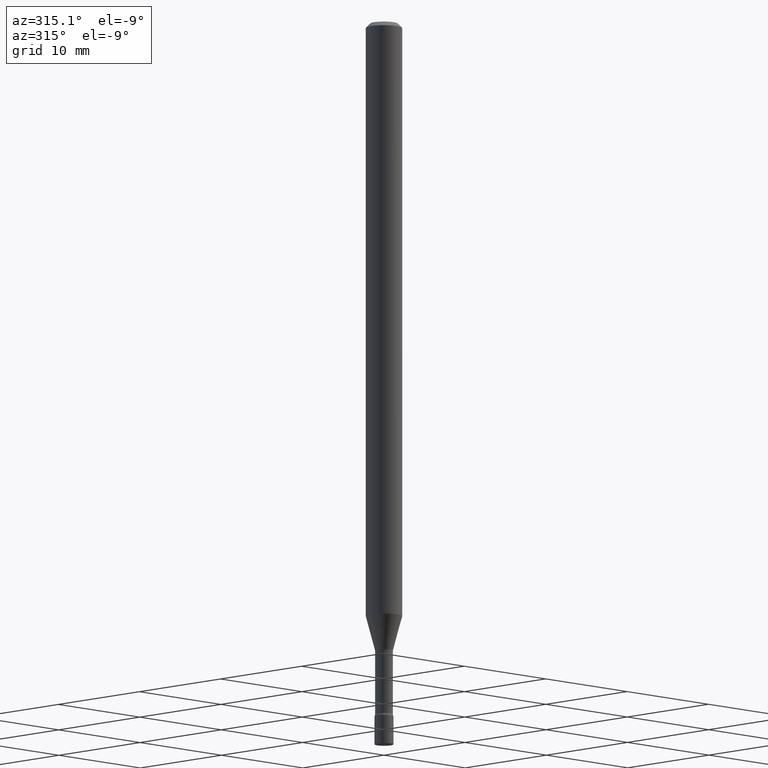
[diagram: clean part render]
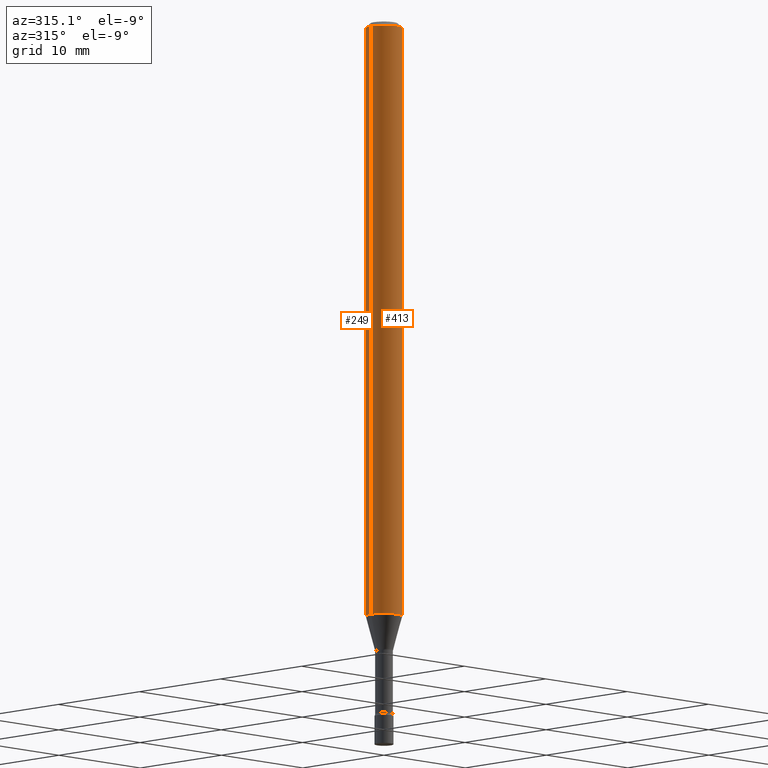
[diagram: same view with one multi-face feature highlighted, each face labeled with its STEP entity id]
A machine part, auxiliary view. The highlighted faces form ONE feature: a constant-radius fillet chain: 2 tangent blend faces with common blend radius 1.5875 mm. The faces share edges in the B-rep.
Their STEP definitions:
[1] entity #413 (Cylinder):
#6 = DIRECTION ( 'NONE',  ( -2.445468806185136877E-29, 3.491481338843145188E-15, 1.000000000000000000 ) ) ;
#18 = ORIENTED_EDGE ( 'NONE', *, *, #243, .T. ) ;
#29 = CARTESIAN_POINT ( 'NONE',  ( 0.06250000000000000000, -4.888073874380389458E-16, -0.01500000000000003067 ) ) ;
#44 = CARTESIAN_POINT ( 'NONE',  ( 5.027299341488075466E-29, -7.177651087263634781E-15, -2.055760976698174591 ) ) ;
#45 = CIRCLE ( 'NONE', #321, 0.06250000000000000000 ) ;
#67 = DIRECTION ( 'NONE',  ( 1.000000000000000000, -6.982962677686266711E-15, 4.876176775795935793E-29 ) ) ;
#99 = VECTOR ( 'NONE', #389, 39.37007874015748143 ) ;
#126 = LINE ( 'NONE', #130, #517 ) ;
#130 = CARTESIAN_POINT ( 'NONE',  ( -0.06250000000000000000, 4.440892098500626162E-16, -3.074334431409316114E-30 ) ) ;
#135 = EDGE_CURVE ( 'NONE', #272, #504, #315, .T. ) ;
#137 = CYLINDRICAL_SURFACE ( 'NONE', #265, 0.06250000000000000000 ) ;
#165 = CARTESIAN_POINT ( 'NONE',  ( 0.06250000000000000000, -7.614086254619026450E-15, -2.055760976698174591 ) ) ;
#181 = DIRECTION ( 'NONE',  ( -2.445468806185136597E-29, 3.491481338843145583E-15, 1.000000000000000000 ) ) ;
#201 = CIRCLE ( 'NONE', #239, 0.06250000000000000000 ) ;
#221 = CARTESIAN_POINT ( 'NONE',  ( -0.06250000000000000000, -3.170922443823078906E-15, -0.01500000000000003067 ) ) ;
#239 = AXIS2_PLACEMENT_3D ( 'NONE', #284, #407, #489 ) ;
#243 = EDGE_CURVE ( 'NONE', #511, #272, #45, .T. ) ;
#260 = FACE_OUTER_BOUND ( 'NONE', #513, .T. ) ;
#265 = AXIS2_PLACEMENT_3D ( 'NONE', #426, #181, #67 ) ;
#272 = VERTEX_POINT ( 'NONE', #165 ) ;
#284 = CARTESIAN_POINT ( 'NONE',  ( 3.668203209277712094E-31, -5.237222008264728876E-17, -0.01500000000000003067 ) ) ;
#290 = CARTESIAN_POINT ( 'NONE',  ( -0.06250000000000000000, -6.733561877413572165E-15, -2.055760976698174591 ) ) ;
#307 = ORIENTED_EDGE ( 'NONE', *, *, #361, .F. ) ;
#315 = LINE ( 'NONE', #476, #99 ) ;
#321 = AXIS2_PLACEMENT_3D ( 'NONE', #44, #434, #519 ) ;
#361 = EDGE_CURVE ( 'NONE', #435, #504, #201, .T. ) ;
#364 = EDGE_CURVE ( 'NONE', #511, #435, #126, .T. ) ;
#389 = DIRECTION ( 'NONE',  ( -2.445468806185136877E-29, 3.491481338843145188E-15, 1.000000000000000000 ) ) ;
#407 = DIRECTION ( 'NONE',  ( -2.445468806185136597E-29, 3.491481338843145583E-15, 1.000000000000000000 ) ) ;
#413 = ADVANCED_FACE ( 'NONE', ( #260 ), #137, .T. ) ;
#426 = CARTESIAN_POINT ( 'NONE',  ( 0.000000000000000000, 0.000000000000000000, 0.000000000000000000 ) ) ;
#434 = DIRECTION ( 'NONE',  ( -2.445468806185136597E-29, 3.491481338843145583E-15, 1.000000000000000000 ) ) ;
#435 = VERTEX_POINT ( 'NONE', #221 ) ;
#476 = CARTESIAN_POINT ( 'NONE',  ( 0.06250000000000000000, -4.364351673553916694E-16, 3.047610484872459871E-30 ) ) ;
#477 = ORIENTED_EDGE ( 'NONE', *, *, #135, .T. ) ;
#489 = DIRECTION ( 'NONE',  ( 1.000000000000000000, -6.982962677686266711E-15, 0.000000000000000000 ) ) ;
#504 = VERTEX_POINT ( 'NONE', #29 ) ;
#511 = VERTEX_POINT ( 'NONE', #290 ) ;
#513 = EDGE_LOOP ( 'NONE', ( #516, #18, #477, #307 ) ) ;
#516 = ORIENTED_EDGE ( 'NONE', *, *, #364, .F. ) ;
#517 = VECTOR ( 'NONE', #6, 39.37007874015748143 ) ;
#519 = DIRECTION ( 'NONE',  ( 1.000000000000000000, -6.982962677686262766E-15, 0.000000000000000000 ) ) ;
[2] entity #249 (Cylinder):
#6 = DIRECTION ( 'NONE',  ( -2.445468806185136877E-29, 3.491481338843145188E-15, 1.000000000000000000 ) ) ;
#29 = CARTESIAN_POINT ( 'NONE',  ( 0.06250000000000000000, -4.888073874380389458E-16, -0.01500000000000003067 ) ) ;
#42 = DIRECTION ( 'NONE',  ( -2.445468806185136597E-29, 3.491481338843145583E-15, 1.000000000000000000 ) ) ;
#69 = AXIS2_PLACEMENT_3D ( 'NONE', #515, #42, #303 ) ;
#77 = AXIS2_PLACEMENT_3D ( 'NONE', #313, #194, #119 ) ;
#99 = VECTOR ( 'NONE', #389, 39.37007874015748143 ) ;
#119 = DIRECTION ( 'NONE',  ( 1.000000000000000000, -6.982962677686266711E-15, 0.000000000000000000 ) ) ;
#124 = CIRCLE ( 'NONE', #77, 0.06250000000000000000 ) ;
#126 = LINE ( 'NONE', #130, #517 ) ;
#130 = CARTESIAN_POINT ( 'NONE',  ( -0.06250000000000000000, 4.440892098500626162E-16, -3.074334431409316114E-30 ) ) ;
#135 = EDGE_CURVE ( 'NONE', #272, #504, #315, .T. ) ;
#142 = AXIS2_PLACEMENT_3D ( 'NONE', #414, #384, #257 ) ;
#145 = EDGE_CURVE ( 'NONE', #504, #435, #124, .T. ) ;
#165 = CARTESIAN_POINT ( 'NONE',  ( 0.06250000000000000000, -7.614086254619026450E-15, -2.055760976698174591 ) ) ;
#194 = DIRECTION ( 'NONE',  ( -2.445468806185136597E-29, 3.491481338843145583E-15, 1.000000000000000000 ) ) ;
#198 = EDGE_LOOP ( 'NONE', ( #399, #493, #408, #520 ) ) ;
#199 = CYLINDRICAL_SURFACE ( 'NONE', #69, 0.06250000000000000000 ) ;
#221 = CARTESIAN_POINT ( 'NONE',  ( -0.06250000000000000000, -3.170922443823078906E-15, -0.01500000000000003067 ) ) ;
#249 = ADVANCED_FACE ( 'NONE', ( #431 ), #199, .T. ) ;
#257 = DIRECTION ( 'NONE',  ( 1.000000000000000000, -6.982962677686262766E-15, 0.000000000000000000 ) ) ;
#272 = VERTEX_POINT ( 'NONE', #165 ) ;
#290 = CARTESIAN_POINT ( 'NONE',  ( -0.06250000000000000000, -6.733561877413572165E-15, -2.055760976698174591 ) ) ;
#303 = DIRECTION ( 'NONE',  ( 1.000000000000000000, -6.982962677686266711E-15, 4.876176775795935793E-29 ) ) ;
#313 = CARTESIAN_POINT ( 'NONE',  ( 3.668203209277712094E-31, -5.237222008264728876E-17, -0.01500000000000003067 ) ) ;
#315 = LINE ( 'NONE', #476, #99 ) ;
#364 = EDGE_CURVE ( 'NONE', #511, #435, #126, .T. ) ;
#366 = CIRCLE ( 'NONE', #142, 0.06250000000000000000 ) ;
#384 = DIRECTION ( 'NONE',  ( -2.445468806185136597E-29, 3.491481338843145583E-15, 1.000000000000000000 ) ) ;
#389 = DIRECTION ( 'NONE',  ( -2.445468806185136877E-29, 3.491481338843145188E-15, 1.000000000000000000 ) ) ;
#399 = ORIENTED_EDGE ( 'NONE', *, *, #456, .T. ) ;
#408 = ORIENTED_EDGE ( 'NONE', *, *, #145, .F. ) ;
#414 = CARTESIAN_POINT ( 'NONE',  ( 5.027299341488075466E-29, -7.177651087263634781E-15, -2.055760976698174591 ) ) ;
#431 = FACE_OUTER_BOUND ( 'NONE', #198, .T. ) ;
#435 = VERTEX_POINT ( 'NONE', #221 ) ;
#456 = EDGE_CURVE ( 'NONE', #272, #511, #366, .T. ) ;
#476 = CARTESIAN_POINT ( 'NONE',  ( 0.06250000000000000000, -4.364351673553916694E-16, 3.047610484872459871E-30 ) ) ;
#493 = ORIENTED_EDGE ( 'NONE', *, *, #364, .T. ) ;
#504 = VERTEX_POINT ( 'NONE', #29 ) ;
#511 = VERTEX_POINT ( 'NONE', #290 ) ;
#515 = CARTESIAN_POINT ( 'NONE',  ( 0.000000000000000000, 0.000000000000000000, 0.000000000000000000 ) ) ;
#517 = VECTOR ( 'NONE', #6, 39.37007874015748143 ) ;
#520 = ORIENTED_EDGE ( 'NONE', *, *, #135, .F. ) ;